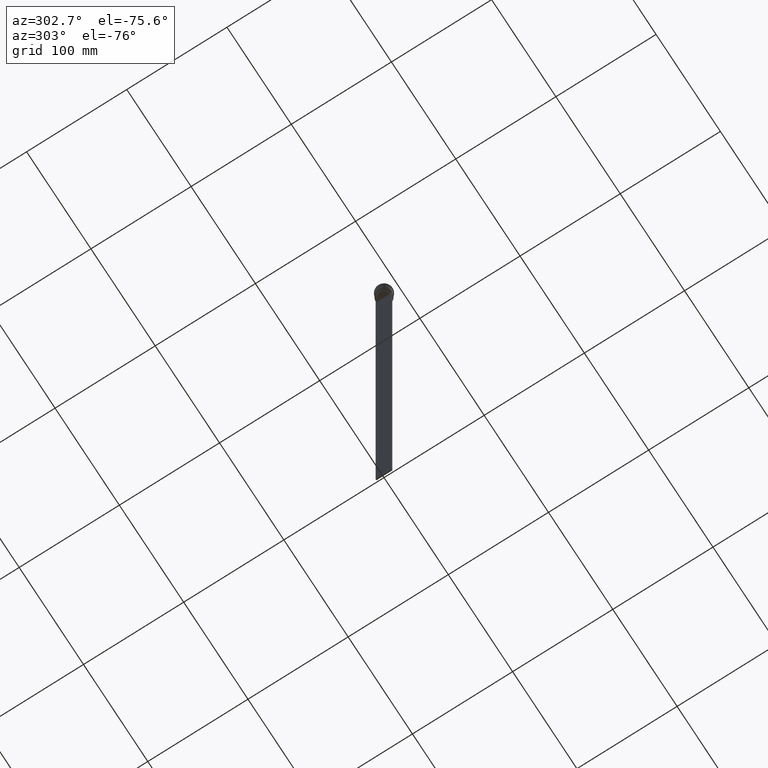
[diagram: clean part render]
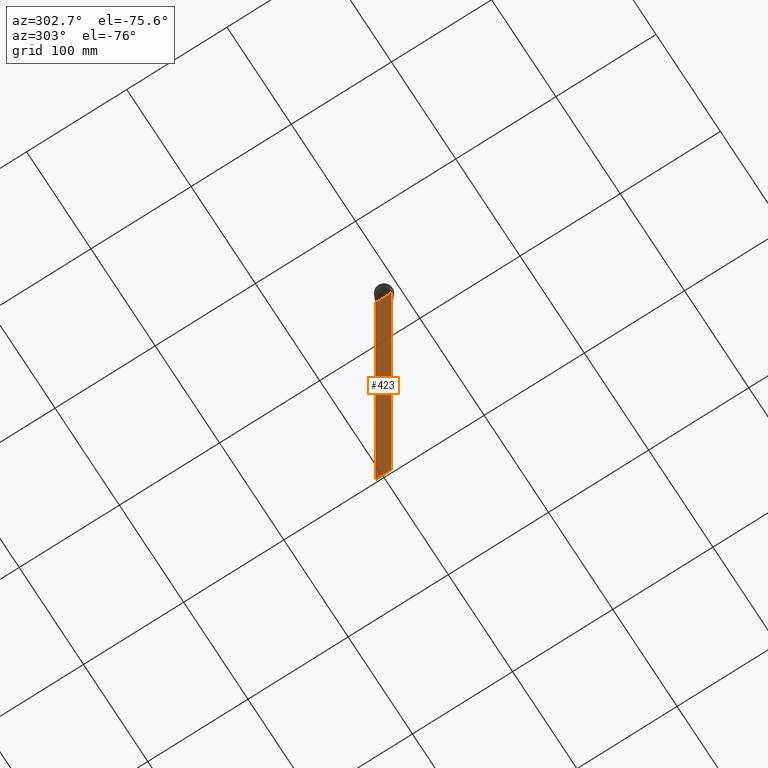
[diagram: same view with one face highlighted and labeled with its STEP entity id]
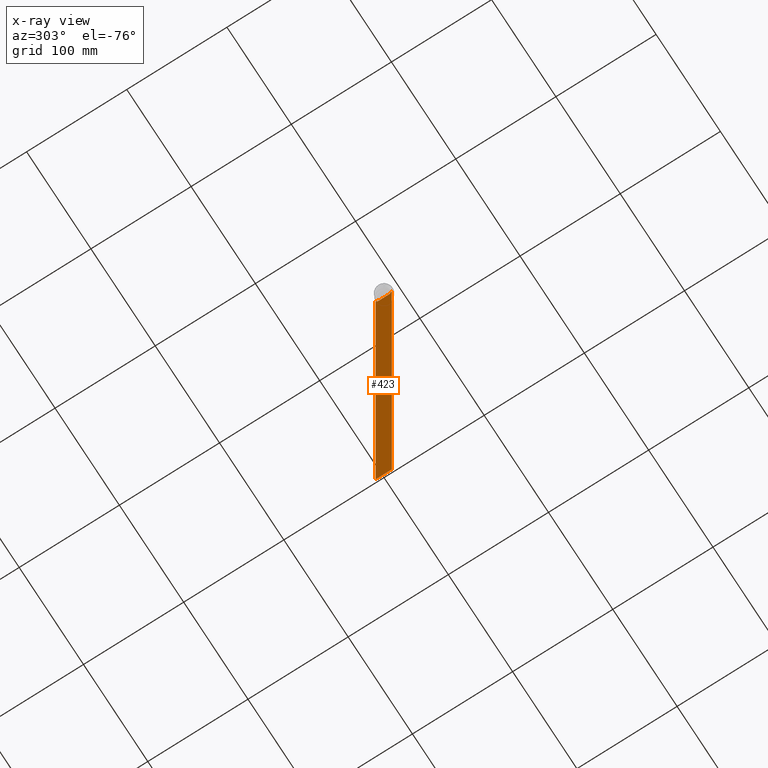
[diagram: x-ray of the same camera — body ghosted, the highlighted face saturated]
A machine part, auxiliary view. The second image highlights one B-rep face of the part: STEP entity #423.
The next image is the same camera in x-ray: the body ghosted, the highlighted face saturated — about 0% of this face is hidden behind the body in this view.
In plain terms, the highlighted planar face has unit normal (-1, 0, 0).
Its self-contained STEP definition (entity closure, byte-faithful):
#7 = LINE ( 'NONE', #554, #1415 ) ;
#22 = EDGE_CURVE ( 'NONE', #711, #1680, #1851, .T. ) ;
#61 = VERTEX_POINT ( 'NONE', #2224 ) ;
#68 = CARTESIAN_POINT ( 'NONE',  ( -0.4999999999999998890, -8.000000000000003553, -14.00000000000000178 ) ) ;
#152 = CARTESIAN_POINT ( 'NONE',  ( -0.4999999999999998890, 6.380438856379708312, -14.50000000000000000 ) ) ;
#167 = ORIENTED_EDGE ( 'NONE', *, *, #2339, .F. ) ;
#195 = EDGE_CURVE ( 'NONE', #710, #2422, #7, .T. ) ;
#199 = CARTESIAN_POINT ( 'NONE',  ( -0.4999999999999998890, -6.881860213634098500, -14.00000000000000178 ) ) ;
#222 = CARTESIAN_POINT ( 'NONE',  ( -0.4999999999999998890, -6.881860213634098500, -14.00000000000000178 ) ) ;
#275 = CARTESIAN_POINT ( 'NONE',  ( -0.4999999999999998890, -8.000000000000003553, -14.00000000000000178 ) ) ;
#323 = CARTESIAN_POINT ( 'NONE',  ( -0.4999999999999998890, -8.000000000000003553, 2.031219541881394530 ) ) ;
#358 = CARTESIAN_POINT ( 'NONE',  ( -0.4999999999999998890, 7.999999999999996447, -614.0000000000000000 ) ) ;
#362 = CARTESIAN_POINT ( 'NONE',  ( -0.4999999999999998890, -6.380438856379708312, -14.50000000000000000 ) ) ;
#389 = DIRECTION ( 'NONE',  ( -0.000000000000000000, -0.000000000000000000, 1.000000000000000000 ) ) ;
#415 = CARTESIAN_POINT ( 'NONE',  ( -0.4999999999999998890, -6.714736947305992132, -14.16668390685738999 ) ) ;
#423 = ADVANCED_FACE ( 'NONE', ( #712 ), #1843, .T. ) ;
#429 = VERTEX_POINT ( 'NONE', #886 ) ;
#432 = VERTEX_POINT ( 'NONE', #1030 ) ;
#444 = DIRECTION ( 'NONE',  ( 0.000000000000000000, -1.000000000000000000, 0.000000000000000000 ) ) ;
#453 = ORIENTED_EDGE ( 'NONE', *, *, #195, .F. ) ;
#464 = LINE ( 'NONE', #821, #2155 ) ;
#465 = CARTESIAN_POINT ( 'NONE',  ( -0.4999999999999998890, 6.380438856379708312, -17.00000000000000000 ) ) ;
#477 = LINE ( 'NONE', #2409, #1877 ) ;
#480 = ORIENTED_EDGE ( 'NONE', *, *, #2130, .F. ) ;
#554 = CARTESIAN_POINT ( 'NONE',  ( -0.4999999999999998890, -6.380438856379708312, 0.000000000000000000 ) ) ;
#633 = DIRECTION ( 'NONE',  ( 0.000000000000000000, 0.000000000000000000, -1.000000000000000000 ) ) ;
#642 = ORIENTED_EDGE ( 'NONE', *, *, #1548, .T. ) ;
#666 = CARTESIAN_POINT ( 'NONE',  ( -0.4999999999999998890, 6.881860213634098500, -14.00000000000000178 ) ) ;
#674 = CARTESIAN_POINT ( 'NONE',  ( -0.4999999999999998890, 6.399999999999999467, -17.00000000000000000 ) ) ;
#704 = DIRECTION ( 'NONE',  ( 0.000000000000000000, 0.000000000000000000, 1.000000000000000000 ) ) ;
#710 = VERTEX_POINT ( 'NONE', #1521 ) ;
#711 = VERTEX_POINT ( 'NONE', #958 ) ;
#712 = FACE_OUTER_BOUND ( 'NONE', #1372, .T. ) ;
#741 = VERTEX_POINT ( 'NONE', #358 ) ;
#760 = CARTESIAN_POINT ( 'NONE',  ( -0.4999999999999998890, -8.000000000000003553, -14.00000000000000178 ) ) ;
#802 = ORIENTED_EDGE ( 'NONE', *, *, #1577, .F. ) ;
#821 = CARTESIAN_POINT ( 'NONE',  ( -0.4999999999999998890, -8.000000000000003553, 2.031219541881394530 ) ) ;
#834 = DIRECTION ( 'NONE',  ( 0.000000000000000000, 1.000000000000000000, 0.000000000000000000 ) ) ;
#848 = VECTOR ( 'NONE', #862, 1000.000000000000000 ) ;
#858 = CARTESIAN_POINT ( 'NONE',  ( -0.4999999999999998890, 7.999999999999996447, 2.031219541881394530 ) ) ;
#862 = DIRECTION ( 'NONE',  ( 0.000000000000000000, -1.000000000000000000, 0.000000000000000000 ) ) ;
#886 = CARTESIAN_POINT ( 'NONE',  ( -0.4999999999999998890, -8.000000000000003553, -14.00000000000000178 ) ) ;
#891 = CARTESIAN_POINT ( 'NONE',  ( -0.4999999999999998890, 6.714736947114692711, -14.16668390704818847 ) ) ;
#958 = CARTESIAN_POINT ( 'NONE',  ( -0.4999999999999998890, 6.881860213634098500, -14.00000000000000178 ) ) ;
#1001 = VERTEX_POINT ( 'NONE', #1738 ) ;
#1030 = CARTESIAN_POINT ( 'NONE',  ( -0.4999999999999998890, 7.884161337770806632, -14.00000000000000178 ) ) ;
#1052 = EDGE_CURVE ( 'NONE', #2242, #61, #1192, .T. ) ;
#1149 = EDGE_CURVE ( 'NONE', #61, #429, #2373, .T. ) ;
#1167 = VERTEX_POINT ( 'NONE', #465 ) ;
#1192 = LINE ( 'NONE', #1546, #1974 ) ;
#1346 = VECTOR ( 'NONE', #2485, 1000.000000000000000 ) ;
#1372 = EDGE_LOOP ( 'NONE', ( #1717, #2357, #1562, #642, #1855, #167, #1385, #2120, #2191, #453, #802, #480 ) ) ;
#1375 = DIRECTION ( 'NONE',  ( 0.000000000000000000, 0.000000000000000000, -1.000000000000000000 ) ) ;
#1385 = ORIENTED_EDGE ( 'NONE', *, *, #1149, .F. ) ;
#1405 = DIRECTION ( 'NONE',  ( 0.000000000000000000, -1.000000000000000000, 0.000000000000000000 ) ) ;
#1415 = VECTOR ( 'NONE', #389, 1000.000000000000000 ) ;
#1519 = CARTESIAN_POINT ( 'NONE',  ( -0.4999999999999998890, -8.000000000000003553, -614.0000000000000000 ) ) ;
#1521 = CARTESIAN_POINT ( 'NONE',  ( -0.4999999999999998890, -6.380438856379708312, -17.00000000000000000 ) ) ;
#1522 = LINE ( 'NONE', #760, #1346 ) ;
#1539 = AXIS2_PLACEMENT_3D ( 'NONE', #323, #1830, #704 ) ;
#1546 = CARTESIAN_POINT ( 'NONE',  ( -0.4999999999999998890, -8.000000000000003553, -14.00000000000000178 ) ) ;
#1548 = EDGE_CURVE ( 'NONE', #1001, #741, #2190, .T. ) ;
#1562 = ORIENTED_EDGE ( 'NONE', *, *, #1807, .F. ) ;
#1577 = EDGE_CURVE ( 'NONE', #1167, #710, #1840, .T. ) ;
#1596 = LINE ( 'NONE', #275, #2352 ) ;
#1680 = VERTEX_POINT ( 'NONE', #152 ) ;
#1701 = VECTOR ( 'NONE', #633, 1000.000000000000000 ) ;
#1717 = ORIENTED_EDGE ( 'NONE', *, *, #22, .F. ) ;
#1738 = CARTESIAN_POINT ( 'NONE',  ( -0.4999999999999998890, 7.999999999999996447, -14.00000000000000178 ) ) ;
#1742 = VECTOR ( 'NONE', #444, 1000.000000000000000 ) ;
#1767 = LINE ( 'NONE', #2310, #2278 ) ;
#1807 = EDGE_CURVE ( 'NONE', #1001, #432, #1522, .T. ) ;
#1822 = CARTESIAN_POINT ( 'NONE',  ( -0.4999999999999998890, 6.380438856379708312, -14.50000000000000000 ) ) ;
#1830 = DIRECTION ( 'NONE',  ( -1.000000000000000000, 0.000000000000000000, 0.000000000000000000 ) ) ;
#1837 = EDGE_CURVE ( 'NONE', #432, #711, #1596, .T. ) ;
#1840 = LINE ( 'NONE', #674, #1742 ) ;
#1843 = PLANE ( 'NONE',  #1539 ) ;
#1851 = B_SPLINE_CURVE_WITH_KNOTS ( 'NONE', 3,
 ( #666, #891, #2062, #1822 ),
 .UNSPECIFIED., .F., .F.,
 ( 4, 4 ),
 ( 0.01172465562756038263, 0.01243276816391822651 ),
 .UNSPECIFIED. ) ;
#1855 = ORIENTED_EDGE ( 'NONE', *, *, #2354, .F. ) ;
#1877 = VECTOR ( 'NONE', #834, 1000.000000000000000 ) ;
#1913 = CARTESIAN_POINT ( 'NONE',  ( -0.4999999999999998890, -6.380438856379708312, -14.50000000000000000 ) ) ;
#1968 = DIRECTION ( 'NONE',  ( 0.000000000000000000, 0.000000000000000000, -1.000000000000000000 ) ) ;
#1974 = VECTOR ( 'NONE', #2149, 1000.000000000000000 ) ;
#1997 = VERTEX_POINT ( 'NONE', #1519 ) ;
#1998 = B_SPLINE_CURVE_WITH_KNOTS ( 'NONE', 3,
 ( #1913, #2148, #415, #199 ),
 .UNSPECIFIED., .F., .F.,
 ( 4, 4 ),
 ( 0.02996184199614749730, 0.03067452609193703841 ),
 .UNSPECIFIED. ) ;
#2062 = CARTESIAN_POINT ( 'NONE',  ( -0.4999999999999998890, 6.547597841304911626, -14.33335192459222718 ) ) ;
#2120 = ORIENTED_EDGE ( 'NONE', *, *, #1052, .F. ) ;
#2130 = EDGE_CURVE ( 'NONE', #1680, #1167, #1767, .T. ) ;
#2148 = CARTESIAN_POINT ( 'NONE',  ( -0.4999999999999998890, -6.547597841511246131, -14.33335192438652328 ) ) ;
#2149 = DIRECTION ( 'NONE',  ( 0.000000000000000000, -1.000000000000000000, 0.000000000000000000 ) ) ;
#2155 = VECTOR ( 'NONE', #1968, 1000.000000000000000 ) ;
#2164 = EDGE_CURVE ( 'NONE', #2422, #2242, #1998, .T. ) ;
#2190 = LINE ( 'NONE', #858, #1701 ) ;
#2191 = ORIENTED_EDGE ( 'NONE', *, *, #2164, .F. ) ;
#2224 = CARTESIAN_POINT ( 'NONE',  ( -0.4999999999999998890, -7.884161337770806632, -14.00000000000000178 ) ) ;
#2242 = VERTEX_POINT ( 'NONE', #222 ) ;
#2278 = VECTOR ( 'NONE', #1375, 1000.000000000000000 ) ;
#2310 = CARTESIAN_POINT ( 'NONE',  ( -0.4999999999999998890, 6.380438856379708312, 0.000000000000000000 ) ) ;
#2339 = EDGE_CURVE ( 'NONE', #429, #1997, #464, .T. ) ;
#2352 = VECTOR ( 'NONE', #1405, 1000.000000000000000 ) ;
#2354 = EDGE_CURVE ( 'NONE', #1997, #741, #477, .T. ) ;
#2357 = ORIENTED_EDGE ( 'NONE', *, *, #1837, .F. ) ;
#2373 = LINE ( 'NONE', #68, #848 ) ;
#2409 = CARTESIAN_POINT ( 'NONE',  ( -0.4999999999999998890, -8.000000000000003553, -614.0000000000000000 ) ) ;
#2422 = VERTEX_POINT ( 'NONE', #362 ) ;
#2485 = DIRECTION ( 'NONE',  ( 0.000000000000000000, -1.000000000000000000, 0.000000000000000000 ) ) ;